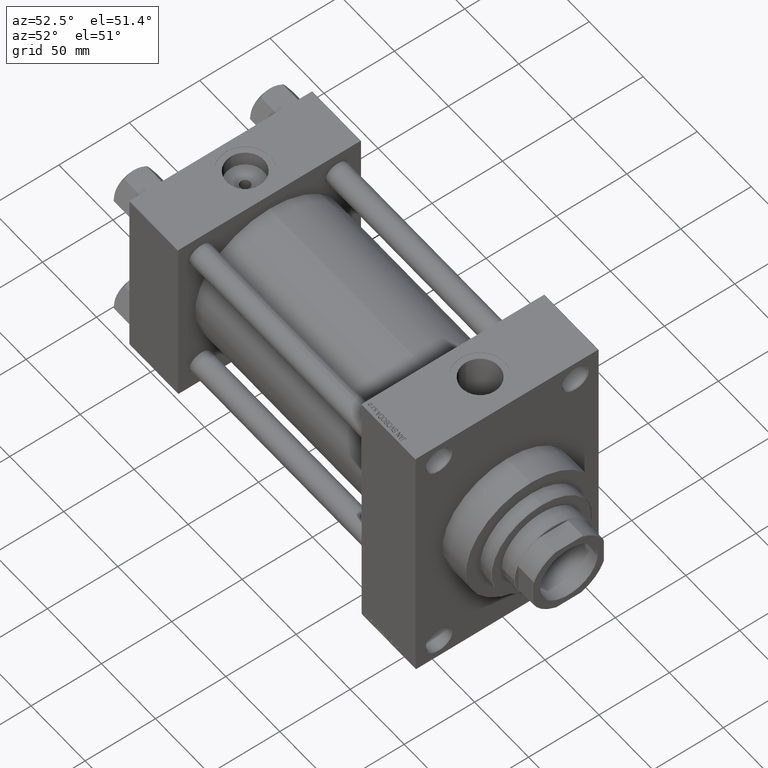
[diagram: clean part render]
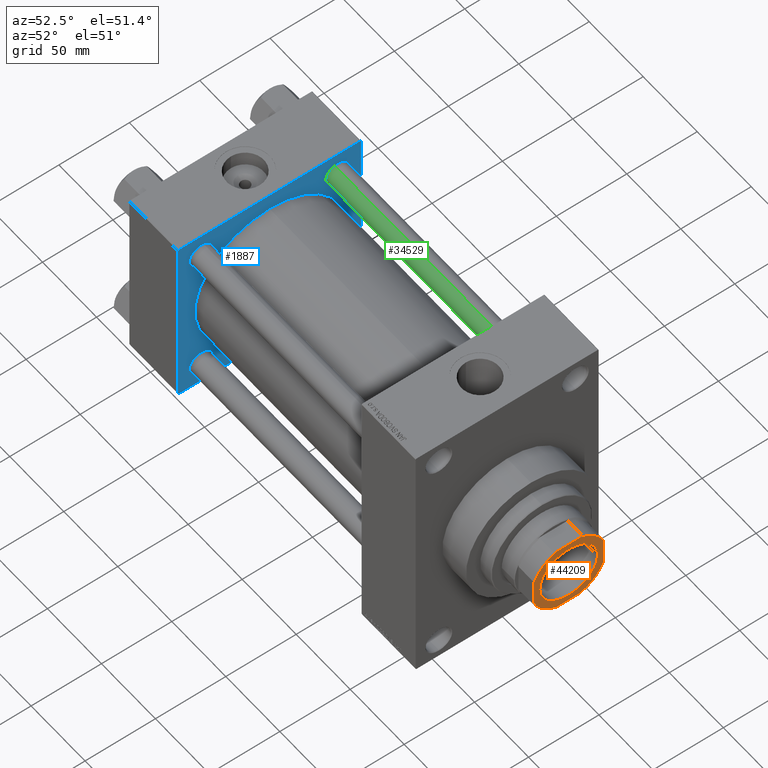
[diagram: same view with three faces highlighted in distinct colors, each labeled with its STEP entity id]
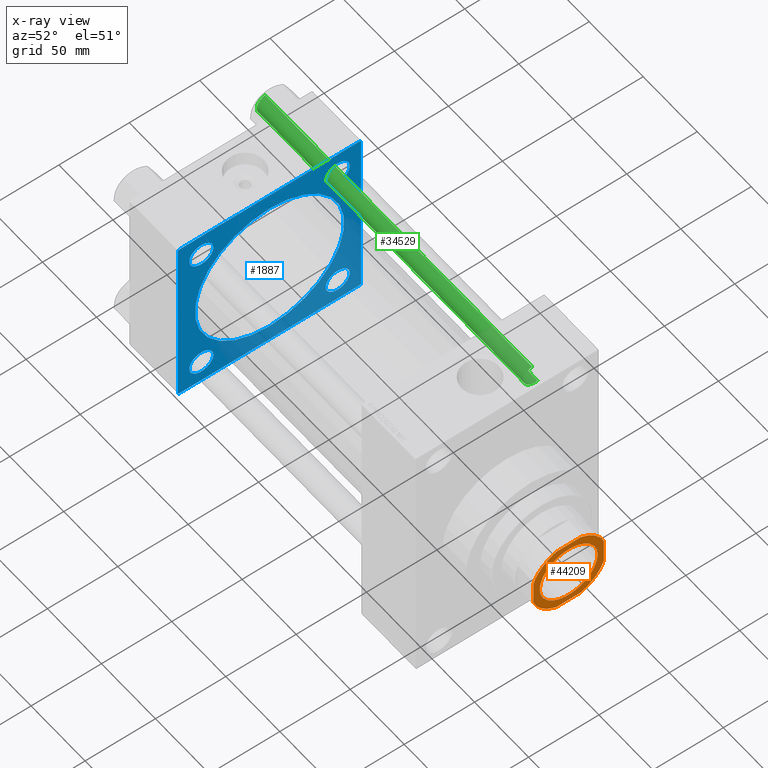
[diagram: x-ray of the same camera — body ghosted, the three highlighted faces saturated]
A machine part, auxiliary view with three faces highlighted in distinct colors.
The next image is the same camera in x-ray (body ghosted, the three faces saturated) — at least one of them is partly hidden behind the body in this view.
Their STEP definitions:

[orange] entity #44209 — the highlighted planar face has unit normal (1, 0, 0).
#179 = VERTEX_POINT ( 'NONE', #36760 ) ;
#297 = ORIENTED_EDGE ( 'NONE', *, *, #25345, .T. ) ;
#505 = CARTESIAN_POINT ( 'NONE',  ( 0.000000000000000000, 0.000000000000000000, 277.0000000000000000 ) ) ;
#1519 = CARTESIAN_POINT ( 'NONE',  ( -25.00000000000000000, 25.00000000000000000, 277.0000000000000000 ) ) ;
#1999 = CIRCLE ( 'NONE', #43628, 20.54999999999995808 ) ;
#2024 = CARTESIAN_POINT ( 'NONE',  ( 0.000000000000000000, 0.000000000000000000, 277.0000000000000000 ) ) ;
#2108 = CARTESIAN_POINT ( 'NONE',  ( 20.54999999999995808, 0.000000000000000000, 277.0000000000000000 ) ) ;
#2210 = CARTESIAN_POINT ( 'NONE',  ( 0.000000000000000000, 0.000000000000000000, 277.0000000000000000 ) ) ;
#3134 = CIRCLE ( 'NONE', #27005, 20.54999999999995808 ) ;
#3867 = VERTEX_POINT ( 'NONE', #8801 ) ;
#4516 = VERTEX_POINT ( 'NONE', #17525 ) ;
#5567 = VERTEX_POINT ( 'NONE', #39429 ) ;
#5673 = VERTEX_POINT ( 'NONE', #44235 ) ;
#5900 = DIRECTION ( 'NONE',  ( 1.000000000000000000, 0.000000000000000000, 0.000000000000000000 ) ) ;
#6124 = DIRECTION ( 'NONE',  ( -1.387778780781445676E-16, 1.000000000000000000, -0.000000000000000000 ) ) ;
#6355 = AXIS2_PLACEMENT_3D ( 'NONE', #2024, #14075, #31464 ) ;
#6581 = EDGE_CURVE ( 'NONE', #4516, #5567, #16497, .T. ) ;
#6747 = CARTESIAN_POINT ( 'NONE',  ( -24.99999999999999289, -25.00000000000000000, 277.0000000000000000 ) ) ;
#6938 = CARTESIAN_POINT ( 'NONE',  ( -8.789197915623482515, 25.00000000000000000, 277.0000000000000000 ) ) ;
#7219 = DIRECTION ( 'NONE',  ( 1.000000000000000000, 0.000000000000000000, 0.000000000000000000 ) ) ;
#8716 = EDGE_CURVE ( 'NONE', #179, #36477, #10100, .T. ) ;
#8801 = CARTESIAN_POINT ( 'NONE',  ( 25.00000000000000355, -8.789197915623464752, 277.0000000000000000 ) ) ;
#9020 = DIRECTION ( 'NONE',  ( 1.000000000000000000, 0.000000000000000000, 0.000000000000000000 ) ) ;
#9366 = CARTESIAN_POINT ( 'NONE',  ( 8.789197915623477186, -25.00000000000000000, 277.0000000000000000 ) ) ;
#9710 = CIRCLE ( 'NONE', #39736, 26.50000000000004619 ) ;
#9759 = DIRECTION ( 'NONE',  ( -1.000000000000000000, -0.000000000000000000, -0.000000000000000000 ) ) ;
#10100 = CIRCLE ( 'NONE', #37065, 26.50000000000000355 ) ;
#11444 = EDGE_CURVE ( 'NONE', #28569, #3867, #26395, .T. ) ;
#12213 = VECTOR ( 'NONE', #6124, 1000.000000000000000 ) ;
#12597 = DIRECTION ( 'NONE',  ( 1.000000000000000000, 0.000000000000000000, 0.000000000000000000 ) ) ;
#14075 = DIRECTION ( 'NONE',  ( -0.000000000000000000, 0.000000000000000000, 1.000000000000000000 ) ) ;
#14442 = EDGE_LOOP ( 'NONE', ( #297, #28134, #15990, #17198, #45935, #16789, #16363, #46253 ) ) ;
#15990 = ORIENTED_EDGE ( 'NONE', *, *, #32672, .T. ) ;
#16112 = ORIENTED_EDGE ( 'NONE', *, *, #33908, .T. ) ;
#16363 = ORIENTED_EDGE ( 'NONE', *, *, #44367, .T. ) ;
#16497 = LINE ( 'NONE', #1519, #31624 ) ;
#16789 = ORIENTED_EDGE ( 'NONE', *, *, #18625, .T. ) ;
#17198 = ORIENTED_EDGE ( 'NONE', *, *, #23091, .T. ) ;
#17525 = CARTESIAN_POINT ( 'NONE',  ( -24.99999999999999645, 8.789197915623493174, 277.0000000000000000 ) ) ;
#17758 = VECTOR ( 'NONE', #9759, 1000.000000000000000 ) ;
#18625 = EDGE_CURVE ( 'NONE', #5567, #36057, #9710, .T. ) ;
#19217 = VERTEX_POINT ( 'NONE', #2108 ) ;
#19469 = AXIS2_PLACEMENT_3D ( 'NONE', #35262, #39112, #42743 ) ;
#19556 = EDGE_CURVE ( 'NONE', #5673, #19217, #1999, .T. ) ;
#20156 = CARTESIAN_POINT ( 'NONE',  ( -25.00000000000000000, 25.00000000000000000, 277.0000000000000000 ) ) ;
#20849 = CARTESIAN_POINT ( 'NONE',  ( 25.00000000000000000, 25.00000000000000000, 277.0000000000000000 ) ) ;
#21386 = ORIENTED_EDGE ( 'NONE', *, *, #19556, .T. ) ;
#22161 = AXIS2_PLACEMENT_3D ( 'NONE', #2210, #27058, #12597 ) ;
#23091 = EDGE_CURVE ( 'NONE', #24431, #4516, #26768, .T. ) ;
#23988 = DIRECTION ( 'NONE',  ( -0.000000000000000000, 0.000000000000000000, 1.000000000000000000 ) ) ;
#24233 = CARTESIAN_POINT ( 'NONE',  ( 0.000000000000000000, 0.000000000000000000, 277.0000000000000000 ) ) ;
#24431 = VERTEX_POINT ( 'NONE', #6938 ) ;
#24644 = CARTESIAN_POINT ( 'NONE',  ( 0.000000000000000000, 0.000000000000000000, 277.0000000000000000 ) ) ;
#24883 = DIRECTION ( 'NONE',  ( -0.000000000000000000, 0.000000000000000000, 1.000000000000000000 ) ) ;
#24899 = EDGE_LOOP ( 'NONE', ( #16112, #21386 ) ) ;
#25345 = EDGE_CURVE ( 'NONE', #3867, #179, #31480, .T. ) ;
#26395 = CIRCLE ( 'NONE', #6355, 26.50000000000000355 ) ;
#26768 = CIRCLE ( 'NONE', #22161, 26.50000000000000711 ) ;
#27005 = AXIS2_PLACEMENT_3D ( 'NONE', #505, #33797, #36945 ) ;
#27058 = DIRECTION ( 'NONE',  ( -0.000000000000000000, 0.000000000000000000, 1.000000000000000000 ) ) ;
#28134 = ORIENTED_EDGE ( 'NONE', *, *, #8716, .T. ) ;
#28337 = CARTESIAN_POINT ( 'NONE',  ( 0.000000000000000000, 0.000000000000000000, 277.0000000000000000 ) ) ;
#28569 = VERTEX_POINT ( 'NONE', #9366 ) ;
#30908 = FACE_OUTER_BOUND ( 'NONE', #14442, .T. ) ;
#31464 = DIRECTION ( 'NONE',  ( 1.000000000000000000, 0.000000000000000000, 0.000000000000000000 ) ) ;
#31480 = LINE ( 'NONE', #20849, #12213 ) ;
#31624 = VECTOR ( 'NONE', #42062, 1000.000000000000000 ) ;
#32167 = CARTESIAN_POINT ( 'NONE',  ( -8.789197915623610413, -25.00000000000000000, 277.0000000000000000 ) ) ;
#32415 = DIRECTION ( 'NONE',  ( 0.000000000000000000, -0.000000000000000000, -1.000000000000000000 ) ) ;
#32672 = EDGE_CURVE ( 'NONE', #36477, #24431, #34620, .T. ) ;
#33797 = DIRECTION ( 'NONE',  ( 0.000000000000000000, -0.000000000000000000, -1.000000000000000000 ) ) ;
#33908 = EDGE_CURVE ( 'NONE', #19217, #5673, #3134, .T. ) ;
#34099 = VECTOR ( 'NONE', #7219, 1000.000000000000000 ) ;
#34620 = LINE ( 'NONE', #20156, #17758 ) ;
#35262 = CARTESIAN_POINT ( 'NONE',  ( 0.000000000000000000, 0.000000000000000000, 277.0000000000000000 ) ) ;
#36057 = VERTEX_POINT ( 'NONE', #32167 ) ;
#36477 = VERTEX_POINT ( 'NONE', #46847 ) ;
#36760 = CARTESIAN_POINT ( 'NONE',  ( 25.00000000000000355, 8.789197915623473634, 277.0000000000000000 ) ) ;
#36945 = DIRECTION ( 'NONE',  ( 1.000000000000000000, 0.000000000000000000, 0.000000000000000000 ) ) ;
#37065 = AXIS2_PLACEMENT_3D ( 'NONE', #24233, #23988, #9020 ) ;
#38394 = PLANE ( 'NONE',  #19469 ) ;
#39112 = DIRECTION ( 'NONE',  ( -0.000000000000000000, 0.000000000000000000, 1.000000000000000000 ) ) ;
#39429 = CARTESIAN_POINT ( 'NONE',  ( -24.99999999999999645, -8.789197915623628177, 277.0000000000000000 ) ) ;
#39736 = AXIS2_PLACEMENT_3D ( 'NONE', #24644, #24883, #46858 ) ;
#42062 = DIRECTION ( 'NONE',  ( 1.387778780781445676E-16, -1.000000000000000000, 0.000000000000000000 ) ) ;
#42258 = FACE_BOUND ( 'NONE', #24899, .T. ) ;
#42743 = DIRECTION ( 'NONE',  ( 1.000000000000000000, 0.000000000000000000, 0.000000000000000000 ) ) ;
#43628 = AXIS2_PLACEMENT_3D ( 'NONE', #28337, #32415, #5900 ) ;
#44149 = LINE ( 'NONE', #6747, #34099 ) ;
#44209 = ADVANCED_FACE ( 'NONE', ( #42258, #30908 ), #38394, .T. ) ;
#44235 = CARTESIAN_POINT ( 'NONE',  ( -20.54999999999995808, 2.516649172247805244E-15, 277.0000000000000000 ) ) ;
#44367 = EDGE_CURVE ( 'NONE', #36057, #28569, #44149, .T. ) ;
#45935 = ORIENTED_EDGE ( 'NONE', *, *, #6581, .T. ) ;
#46253 = ORIENTED_EDGE ( 'NONE', *, *, #11444, .T. ) ;
#46847 = CARTESIAN_POINT ( 'NONE',  ( 8.789197915623478963, 25.00000000000000000, 277.0000000000000000 ) ) ;
#46858 = DIRECTION ( 'NONE',  ( 1.000000000000000000, 0.000000000000000000, 0.000000000000000000 ) ) ;

[blue] entity #1887 — the highlighted planar face has unit normal (-1, 0, 0).
#17 = CARTESIAN_POINT ( 'NONE',  ( 45.00000000000000000, 65.00000000000000000, 64.49999999999998579 ) ) ;
#482 = EDGE_CURVE ( 'NONE', #14656, #10684, #11515, .T. ) ;
#875 = CARTESIAN_POINT ( 'NONE',  ( 45.00000000000000000, 48.45000000000000995, -48.45000000000001705 ) ) ;
#1257 = ORIENTED_EDGE ( 'NONE', *, *, #29907, .F. ) ;
#1489 = CARTESIAN_POINT ( 'NONE',  ( 45.00000000000000000, 64.49999999999997158, -64.99999999999998579 ) ) ;
#1662 = CIRCLE ( 'NONE', #31710, 8.499999999999952038 ) ;
#1887 = ADVANCED_FACE ( 'NONE', ( #3728, #44756, #44514, #36796, #7579, #27321 ), #29324, .F. ) ;
#1933 = CARTESIAN_POINT ( 'NONE',  ( 45.00000000000000000, 65.00000000000000000, -64.49999999999995737 ) ) ;
#1997 = CARTESIAN_POINT ( 'NONE',  ( 45.00000000000000000, -48.44999999999999574, -56.95000000000003837 ) ) ;
#2208 = CARTESIAN_POINT ( 'NONE',  ( 45.00000000000000000, -48.44999999999999574, -48.45000000000003126 ) ) ;
#2273 = LINE ( 'NONE', #16999, #29155 ) ;
#2681 = CIRCLE ( 'NONE', #18869, 8.500000000000007105 ) ;
#2874 = AXIS2_PLACEMENT_3D ( 'NONE', #43273, #10209, #15030 ) ;
#3103 = VECTOR ( 'NONE', #20987, 1000.000000000000000 ) ;
#3148 = EDGE_CURVE ( 'NONE', #32963, #29857, #33041, .T. ) ;
#3728 = FACE_BOUND ( 'NONE', #37699, .T. ) ;
#4420 = VECTOR ( 'NONE', #10572, 1000.000000000000114 ) ;
#5495 = CIRCLE ( 'NONE', #42460, 8.500000000000007105 ) ;
#5889 = CARTESIAN_POINT ( 'NONE',  ( 45.00000000000000000, -64.49999999999994316, -65.00000000000000000 ) ) ;
#6029 = VERTEX_POINT ( 'NONE', #45130 ) ;
#6128 = VERTEX_POINT ( 'NONE', #1933 ) ;
#6209 = EDGE_CURVE ( 'NONE', #6029, #39918, #6265, .T. ) ;
#6265 = LINE ( 'NONE', #47287, #3103 ) ;
#7579 = FACE_BOUND ( 'NONE', #39502, .T. ) ;
#7876 = DIRECTION ( 'NONE',  ( 0.000000000000000000, 0.000000000000000000, 1.000000000000000000 ) ) ;
#7968 = ORIENTED_EDGE ( 'NONE', *, *, #25363, .T. ) ;
#8254 = DIRECTION ( 'NONE',  ( -1.000000000000000000, 0.000000000000000000, -0.000000000000000000 ) ) ;
#8332 = CARTESIAN_POINT ( 'NONE',  ( 45.00000000000000000, -65.00000000000000000, 64.50000000000000000 ) ) ;
#8337 = DIRECTION ( 'NONE',  ( -1.000000000000000000, 0.000000000000000000, -0.000000000000000000 ) ) ;
#8702 = EDGE_CURVE ( 'NONE', #21161, #23401, #23501, .T. ) ;
#8711 = DIRECTION ( 'NONE',  ( -1.000000000000000000, 0.000000000000000000, -0.000000000000000000 ) ) ;
#8768 = CIRCLE ( 'NONE', #34227, 8.499999999999952038 ) ;
#8943 = VECTOR ( 'NONE', #12252, 1000.000000000000000 ) ;
#9132 = VERTEX_POINT ( 'NONE', #1489 ) ;
#9281 = ORIENTED_EDGE ( 'NONE', *, *, #26618, .T. ) ;
#9497 = VECTOR ( 'NONE', #23063, 1000.000000000000000 ) ;
#10209 = DIRECTION ( 'NONE',  ( 1.000000000000000000, -0.000000000000000000, 0.000000000000000000 ) ) ;
#10361 = CARTESIAN_POINT ( 'NONE',  ( 45.00000000000000000, -48.44999999999999574, 39.95000000000001705 ) ) ;
#10406 = LINE ( 'NONE', #43474, #46161 ) ;
#10572 = DIRECTION ( 'NONE',  ( 0.000000000000000000, -0.7071067811865474617, 0.7071067811865474617 ) ) ;
#10573 = CARTESIAN_POINT ( 'NONE',  ( 45.00000000000000000, -64.49999999999997158, 65.00000000000000000 ) ) ;
#10684 = VERTEX_POINT ( 'NONE', #44973 ) ;
#10860 = CARTESIAN_POINT ( 'NONE',  ( 44.99999999999998579, -2.602085213965210642E-15, 0.000000000000000000 ) ) ;
#10949 = VERTEX_POINT ( 'NONE', #30431 ) ;
#10982 = DIRECTION ( 'NONE',  ( -0.000000000000000000, 0.000000000000000000, 1.000000000000000000 ) ) ;
#11050 = CARTESIAN_POINT ( 'NONE',  ( 45.00000000000000000, 64.49999999999997158, 65.00000000000001421 ) ) ;
#11412 = CIRCLE ( 'NONE', #36082, 53.00000000000000711 ) ;
#11515 = CIRCLE ( 'NONE', #38498, 8.499999999999952038 ) ;
#11596 = ORIENTED_EDGE ( 'NONE', *, *, #21540, .F. ) ;
#11699 = DIRECTION ( 'NONE',  ( -1.000000000000000000, 0.000000000000000000, -0.000000000000000000 ) ) ;
#11745 = DIRECTION ( 'NONE',  ( 0.000000000000000000, 0.000000000000000000, 1.000000000000000000 ) ) ;
#12215 = AXIS2_PLACEMENT_3D ( 'NONE', #19843, #11699, #10982 ) ;
#12252 = DIRECTION ( 'NONE',  ( 0.000000000000000000, 0.000000000000000000, -1.000000000000000000 ) ) ;
#12616 = CIRCLE ( 'NONE', #28026, 8.499999999999952038 ) ;
#12740 = CARTESIAN_POINT ( 'NONE',  ( 45.00000000000000000, 48.45000000000000995, 39.95000000000005969 ) ) ;
#13031 = EDGE_CURVE ( 'NONE', #39918, #43250, #37539, .T. ) ;
#13483 = EDGE_LOOP ( 'NONE', ( #1257, #7968, #45722, #9281, #37715, #37217, #25064, #18657 ) ) ;
#14131 = ORIENTED_EDGE ( 'NONE', *, *, #46856, .T. ) ;
#14370 = DIRECTION ( 'NONE',  ( -1.000000000000000000, 0.000000000000000000, -0.000000000000000000 ) ) ;
#14480 = EDGE_CURVE ( 'NONE', #10684, #14656, #8768, .T. ) ;
#14656 = VERTEX_POINT ( 'NONE', #35850 ) ;
#14899 = DIRECTION ( 'NONE',  ( -1.000000000000000000, 0.000000000000000000, -0.000000000000000000 ) ) ;
#15030 = DIRECTION ( 'NONE',  ( 0.000000000000000000, 0.000000000000000000, 1.000000000000000000 ) ) ;
#16093 = CARTESIAN_POINT ( 'NONE',  ( 45.00000000000000000, -48.44999999999999574, 48.45000000000003126 ) ) ;
#16197 = DIRECTION ( 'NONE',  ( -1.000000000000000000, 0.000000000000000000, -0.000000000000000000 ) ) ;
#16454 = CARTESIAN_POINT ( 'NONE',  ( 45.00000000000000000, 48.45000000000000995, 48.45000000000001705 ) ) ;
#16932 = DIRECTION ( 'NONE',  ( -1.000000000000000000, 0.000000000000000000, -0.000000000000000000 ) ) ;
#16999 = CARTESIAN_POINT ( 'NONE',  ( 45.00000000000000000, 65.00000000000000000, -64.49999999999995737 ) ) ;
#17051 = VECTOR ( 'NONE', #34853, 1000.000000000000000 ) ;
#17168 = EDGE_CURVE ( 'NONE', #28235, #10949, #2681, .T. ) ;
#17987 = AXIS2_PLACEMENT_3D ( 'NONE', #28374, #14370, #29077 ) ;
#18657 = ORIENTED_EDGE ( 'NONE', *, *, #8702, .T. ) ;
#18869 = AXIS2_PLACEMENT_3D ( 'NONE', #16093, #19233, #7876 ) ;
#19177 = AXIS2_PLACEMENT_3D ( 'NONE', #26598, #8254, #22983 ) ;
#19233 = DIRECTION ( 'NONE',  ( -1.000000000000000000, 0.000000000000000000, -0.000000000000000000 ) ) ;
#19467 = VERTEX_POINT ( 'NONE', #38725 ) ;
#19843 = CARTESIAN_POINT ( 'NONE',  ( 45.00000000000000000, 0.000000000000000000, 0.000000000000000000 ) ) ;
#19975 = EDGE_CURVE ( 'NONE', #43250, #21161, #27943, .T. ) ;
#20813 = DIRECTION ( 'NONE',  ( 0.000000000000000000, -1.000000000000000000, -1.067522139062650425E-16 ) ) ;
#20959 = VECTOR ( 'NONE', #30823, 1000.000000000000000 ) ;
#20987 = DIRECTION ( 'NONE',  ( 0.000000000000000000, -1.000000000000000000, -1.067522139062650425E-16 ) ) ;
#21161 = VERTEX_POINT ( 'NONE', #23562 ) ;
#21540 = EDGE_CURVE ( 'NONE', #19467, #22709, #28278, .T. ) ;
#21731 = CARTESIAN_POINT ( 'NONE',  ( 44.99999999999998579, 3.888542821515762466E-15, -53.00000000000000711 ) ) ;
#22425 = CARTESIAN_POINT ( 'NONE',  ( 45.00000000000000000, -64.49999999999994316, -65.00000000000000000 ) ) ;
#22640 = EDGE_LOOP ( 'NONE', ( #38314, #41353 ) ) ;
#22709 = VERTEX_POINT ( 'NONE', #21731 ) ;
#22983 = DIRECTION ( 'NONE',  ( 0.000000000000000000, 0.000000000000000000, 1.000000000000000000 ) ) ;
#23063 = DIRECTION ( 'NONE',  ( -0.000000000000000000, -0.7071067811865672237, -0.7071067811865279218 ) ) ;
#23401 = VERTEX_POINT ( 'NONE', #22425 ) ;
#23501 = LINE ( 'NONE', #5889, #17051 ) ;
#23562 = CARTESIAN_POINT ( 'NONE',  ( 45.00000000000000000, -65.00000000000000000, -64.49999999999991473 ) ) ;
#23826 = LINE ( 'NONE', #45071, #20959 ) ;
#24236 = EDGE_CURVE ( 'NONE', #22709, #19467, #11412, .T. ) ;
#24886 = ORIENTED_EDGE ( 'NONE', *, *, #17168, .T. ) ;
#25064 = ORIENTED_EDGE ( 'NONE', *, *, #19975, .T. ) ;
#25355 = CARTESIAN_POINT ( 'NONE',  ( 45.00000000000000000, -48.44999999999999574, -39.95000000000001705 ) ) ;
#25363 = EDGE_CURVE ( 'NONE', #9132, #6128, #2273, .T. ) ;
#26598 = CARTESIAN_POINT ( 'NONE',  ( 45.00000000000000000, -48.44999999999999574, -48.45000000000003126 ) ) ;
#26618 = EDGE_CURVE ( 'NONE', #41074, #6029, #36159, .T. ) ;
#27075 = EDGE_LOOP ( 'NONE', ( #24886, #14131 ) ) ;
#27321 = FACE_OUTER_BOUND ( 'NONE', #13483, .T. ) ;
#27541 = DIRECTION ( 'NONE',  ( 0.000000000000000000, 0.000000000000000000, 1.000000000000000000 ) ) ;
#27943 = LINE ( 'NONE', #35178, #8943 ) ;
#28026 = AXIS2_PLACEMENT_3D ( 'NONE', #16454, #8711, #27541 ) ;
#28235 = VERTEX_POINT ( 'NONE', #10361 ) ;
#28278 = CIRCLE ( 'NONE', #2874, 53.00000000000000711 ) ;
#28374 = CARTESIAN_POINT ( 'NONE',  ( 45.00000000000000000, -48.44999999999999574, 48.45000000000003126 ) ) ;
#28739 = DIRECTION ( 'NONE',  ( 1.000000000000000000, -0.000000000000000000, 0.000000000000000000 ) ) ;
#29077 = DIRECTION ( 'NONE',  ( 0.000000000000000000, 0.000000000000000000, 1.000000000000000000 ) ) ;
#29155 = VECTOR ( 'NONE', #31715, 1000.000000000000114 ) ;
#29224 = ORIENTED_EDGE ( 'NONE', *, *, #3148, .T. ) ;
#29324 = PLANE ( 'NONE',  #12215 ) ;
#29857 = VERTEX_POINT ( 'NONE', #1997 ) ;
#29907 = EDGE_CURVE ( 'NONE', #9132, #23401, #10406, .T. ) ;
#30431 = CARTESIAN_POINT ( 'NONE',  ( 45.00000000000000000, -48.44999999999999574, 56.95000000000003837 ) ) ;
#30542 = DIRECTION ( 'NONE',  ( 0.000000000000000000, 0.000000000000000000, 1.000000000000000000 ) ) ;
#30823 = DIRECTION ( 'NONE',  ( 0.000000000000000000, 0.000000000000000000, -1.000000000000000000 ) ) ;
#31710 = AXIS2_PLACEMENT_3D ( 'NONE', #38028, #8337, #30542 ) ;
#31715 = DIRECTION ( 'NONE',  ( -0.000000000000000000, 0.7071067811865474617, 0.7071067811865474617 ) ) ;
#32492 = VERTEX_POINT ( 'NONE', #12740 ) ;
#32963 = VERTEX_POINT ( 'NONE', #25355 ) ;
#33041 = CIRCLE ( 'NONE', #19177, 8.500000000000007105 ) ;
#33902 = ORIENTED_EDGE ( 'NONE', *, *, #482, .T. ) ;
#34227 = AXIS2_PLACEMENT_3D ( 'NONE', #875, #14899, #11745 ) ;
#34281 = DIRECTION ( 'NONE',  ( 0.000000000000000000, 0.000000000000000000, 1.000000000000000000 ) ) ;
#34853 = DIRECTION ( 'NONE',  ( 0.000000000000000000, 0.7071067811865279218, -0.7071067811865671127 ) ) ;
#35178 = CARTESIAN_POINT ( 'NONE',  ( 45.00000000000000000, -65.00000000000000000, 65.00000000000000000 ) ) ;
#35378 = EDGE_CURVE ( 'NONE', #29857, #32963, #5495, .T. ) ;
#35850 = CARTESIAN_POINT ( 'NONE',  ( 45.00000000000000000, 48.45000000000000995, -56.94999999999996732 ) ) ;
#36082 = AXIS2_PLACEMENT_3D ( 'NONE', #10860, #28739, #39362 ) ;
#36159 = LINE ( 'NONE', #11050, #4420 ) ;
#36396 = VERTEX_POINT ( 'NONE', #36677 ) ;
#36677 = CARTESIAN_POINT ( 'NONE',  ( 45.00000000000000000, 48.45000000000000995, 56.94999999999996732 ) ) ;
#36796 = FACE_BOUND ( 'NONE', #22640, .T. ) ;
#37217 = ORIENTED_EDGE ( 'NONE', *, *, #13031, .T. ) ;
#37539 = LINE ( 'NONE', #8332, #9497 ) ;
#37699 = EDGE_LOOP ( 'NONE', ( #42059, #29224 ) ) ;
#37715 = ORIENTED_EDGE ( 'NONE', *, *, #6209, .T. ) ;
#38028 = CARTESIAN_POINT ( 'NONE',  ( 45.00000000000000000, 48.45000000000000995, 48.45000000000001705 ) ) ;
#38314 = ORIENTED_EDGE ( 'NONE', *, *, #46444, .T. ) ;
#38498 = AXIS2_PLACEMENT_3D ( 'NONE', #45619, #16197, #34281 ) ;
#38725 = CARTESIAN_POINT ( 'NONE',  ( 44.99999999999998579, -2.602085213965210642E-15, 53.00000000000000711 ) ) ;
#39118 = DIRECTION ( 'NONE',  ( 0.000000000000000000, 0.000000000000000000, 1.000000000000000000 ) ) ;
#39362 = DIRECTION ( 'NONE',  ( 0.000000000000000000, 0.000000000000000000, 1.000000000000000000 ) ) ;
#39491 = EDGE_CURVE ( 'NONE', #36396, #32492, #1662, .T. ) ;
#39502 = EDGE_LOOP ( 'NONE', ( #11596, #42424 ) ) ;
#39918 = VERTEX_POINT ( 'NONE', #10573 ) ;
#40192 = EDGE_CURVE ( 'NONE', #41074, #6128, #23826, .T. ) ;
#40427 = ORIENTED_EDGE ( 'NONE', *, *, #14480, .T. ) ;
#41074 = VERTEX_POINT ( 'NONE', #17 ) ;
#41353 = ORIENTED_EDGE ( 'NONE', *, *, #39491, .T. ) ;
#42059 = ORIENTED_EDGE ( 'NONE', *, *, #35378, .T. ) ;
#42424 = ORIENTED_EDGE ( 'NONE', *, *, #24236, .F. ) ;
#42460 = AXIS2_PLACEMENT_3D ( 'NONE', #2208, #16932, #39118 ) ;
#42661 = CIRCLE ( 'NONE', #17987, 8.500000000000007105 ) ;
#43250 = VERTEX_POINT ( 'NONE', #44432 ) ;
#43273 = CARTESIAN_POINT ( 'NONE',  ( 44.99999999999998579, -2.602085213965210642E-15, 0.000000000000000000 ) ) ;
#43344 = EDGE_LOOP ( 'NONE', ( #33902, #40427 ) ) ;
#43474 = CARTESIAN_POINT ( 'NONE',  ( 45.00000000000000000, 65.00000000000000000, -64.99999999999998579 ) ) ;
#44432 = CARTESIAN_POINT ( 'NONE',  ( 45.00000000000000000, -65.00000000000000000, 64.50000000000000000 ) ) ;
#44514 = FACE_BOUND ( 'NONE', #27075, .T. ) ;
#44756 = FACE_BOUND ( 'NONE', #43344, .T. ) ;
#44973 = CARTESIAN_POINT ( 'NONE',  ( 45.00000000000000000, 48.45000000000000995, -39.95000000000005969 ) ) ;
#45071 = CARTESIAN_POINT ( 'NONE',  ( 45.00000000000000000, 65.00000000000000000, 65.00000000000001421 ) ) ;
#45130 = CARTESIAN_POINT ( 'NONE',  ( 45.00000000000000000, 64.49999999999997158, 65.00000000000001421 ) ) ;
#45619 = CARTESIAN_POINT ( 'NONE',  ( 45.00000000000000000, 48.45000000000000995, -48.45000000000001705 ) ) ;
#45722 = ORIENTED_EDGE ( 'NONE', *, *, #40192, .F. ) ;
#46161 = VECTOR ( 'NONE', #20813, 1000.000000000000000 ) ;
#46444 = EDGE_CURVE ( 'NONE', #32492, #36396, #12616, .T. ) ;
#46856 = EDGE_CURVE ( 'NONE', #10949, #28235, #42661, .T. ) ;
#47287 = CARTESIAN_POINT ( 'NONE',  ( 45.00000000000000000, 65.00000000000000000, 65.00000000000001421 ) ) ;

[green] entity #34529 — the highlighted cylindrical surface (edge-blend (fillet) strip) has radius 8 mm, axis along (-1, -0, 0).
#6657 = CIRCLE ( 'NONE', #41358, 8.000000000000000000 ) ;
#6956 = AXIS2_PLACEMENT_3D ( 'NONE', #43851, #25027, #40216 ) ;
#9590 = CARTESIAN_POINT ( 'NONE',  ( 8.000000000000000000, 9.797174393178825657E-16, 247.5000000000000284 ) ) ;
#9808 = DIRECTION ( 'NONE',  ( -0.000000000000000000, -0.000000000000000000, -1.000000000000000000 ) ) ;
#10539 = CYLINDRICAL_SURFACE ( 'NONE', #6956, 8.000000000000000000 ) ;
#11743 = EDGE_CURVE ( 'NONE', #15534, #23814, #46613, .T. ) ;
#15534 = VERTEX_POINT ( 'NONE', #47590 ) ;
#17523 = LINE ( 'NONE', #21371, #36761 ) ;
#18744 = FACE_OUTER_BOUND ( 'NONE', #27867, .T. ) ;
#20039 = VERTEX_POINT ( 'NONE', #9590 ) ;
#21247 = DIRECTION ( 'NONE',  ( -0.000000000000000000, -0.000000000000000000, -1.000000000000000000 ) ) ;
#21295 = EDGE_CURVE ( 'NONE', #23814, #42494, #6657, .T. ) ;
#21371 = CARTESIAN_POINT ( 'NONE',  ( 8.000000000000000000, 9.797174393178825657E-16, 248.0000000000000000 ) ) ;
#21600 = CIRCLE ( 'NONE', #30115, 8.000000000000000000 ) ;
#23814 = VERTEX_POINT ( 'NONE', #29848 ) ;
#24661 = ORIENTED_EDGE ( 'NONE', *, *, #24823, .F. ) ;
#24800 = DIRECTION ( 'NONE',  ( 1.000000000000000000, 0.000000000000000000, 0.000000000000000000 ) ) ;
#24823 = EDGE_CURVE ( 'NONE', #20039, #42494, #17523, .T. ) ;
#25027 = DIRECTION ( 'NONE',  ( -0.000000000000000000, -0.000000000000000000, -1.000000000000000000 ) ) ;
#27867 = EDGE_LOOP ( 'NONE', ( #24661, #27999, #44287, #31856 ) ) ;
#27999 = ORIENTED_EDGE ( 'NONE', *, *, #34520, .T. ) ;
#29559 = CARTESIAN_POINT ( 'NONE',  ( 0.000000000000000000, 0.000000000000000000, 0.4999999999999726885 ) ) ;
#29848 = CARTESIAN_POINT ( 'NONE',  ( -8.000000000000000000, 0.000000000000000000, 0.4999999999999726885 ) ) ;
#30115 = AXIS2_PLACEMENT_3D ( 'NONE', #38815, #31577, #24800 ) ;
#31092 = CARTESIAN_POINT ( 'NONE',  ( 8.000000000000000000, 9.797174393178825657E-16, 0.4999999999999726885 ) ) ;
#31577 = DIRECTION ( 'NONE',  ( 0.000000000000000000, 0.000000000000000000, -1.000000000000000000 ) ) ;
#31856 = ORIENTED_EDGE ( 'NONE', *, *, #21295, .T. ) ;
#32108 = CARTESIAN_POINT ( 'NONE',  ( -8.000000000000000000, 0.000000000000000000, 248.0000000000000000 ) ) ;
#34520 = EDGE_CURVE ( 'NONE', #20039, #15534, #21600, .T. ) ;
#34529 = ADVANCED_FACE ( 'NONE', ( #18744 ), #10539, .T. ) ;
#35651 = VECTOR ( 'NONE', #21247, 1000.000000000000000 ) ;
#36761 = VECTOR ( 'NONE', #9808, 1000.000000000000000 ) ;
#38815 = CARTESIAN_POINT ( 'NONE',  ( 0.000000000000000000, 0.000000000000000000, 247.5000000000000284 ) ) ;
#40216 = DIRECTION ( 'NONE',  ( -1.000000000000000000, 0.000000000000000000, 0.000000000000000000 ) ) ;
#40645 = DIRECTION ( 'NONE',  ( -0.000000000000000000, -0.000000000000000000, 1.000000000000000000 ) ) ;
#41358 = AXIS2_PLACEMENT_3D ( 'NONE', #29559, #40645, #44041 ) ;
#42494 = VERTEX_POINT ( 'NONE', #31092 ) ;
#43851 = CARTESIAN_POINT ( 'NONE',  ( 0.000000000000000000, 0.000000000000000000, 248.0000000000000000 ) ) ;
#44041 = DIRECTION ( 'NONE',  ( 1.000000000000000000, 0.000000000000000000, 0.000000000000000000 ) ) ;
#44287 = ORIENTED_EDGE ( 'NONE', *, *, #11743, .T. ) ;
#46613 = LINE ( 'NONE', #32108, #35651 ) ;
#47590 = CARTESIAN_POINT ( 'NONE',  ( -8.000000000000000000, 0.000000000000000000, 247.5000000000000284 ) ) ;